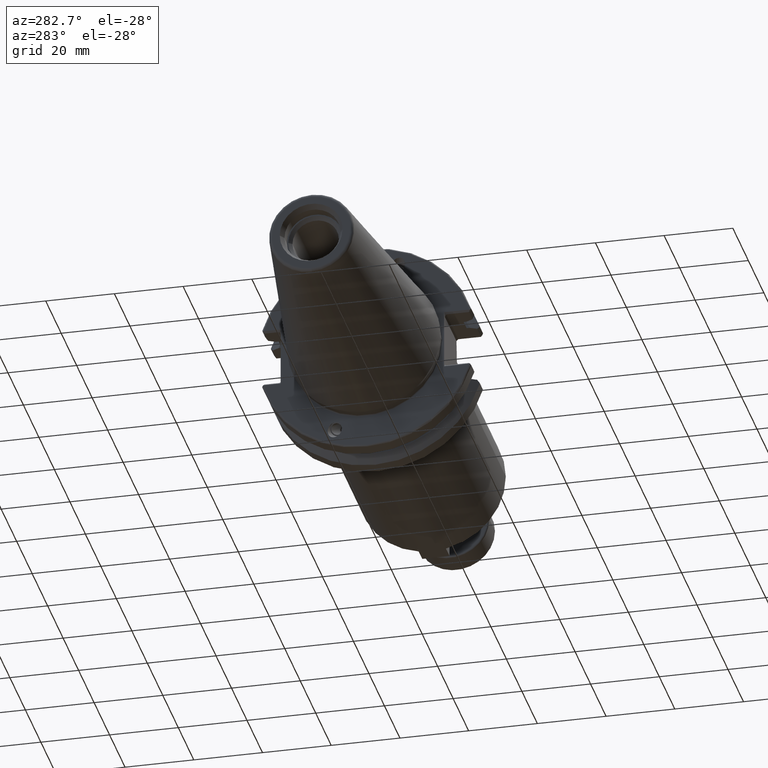
[diagram: clean part render]
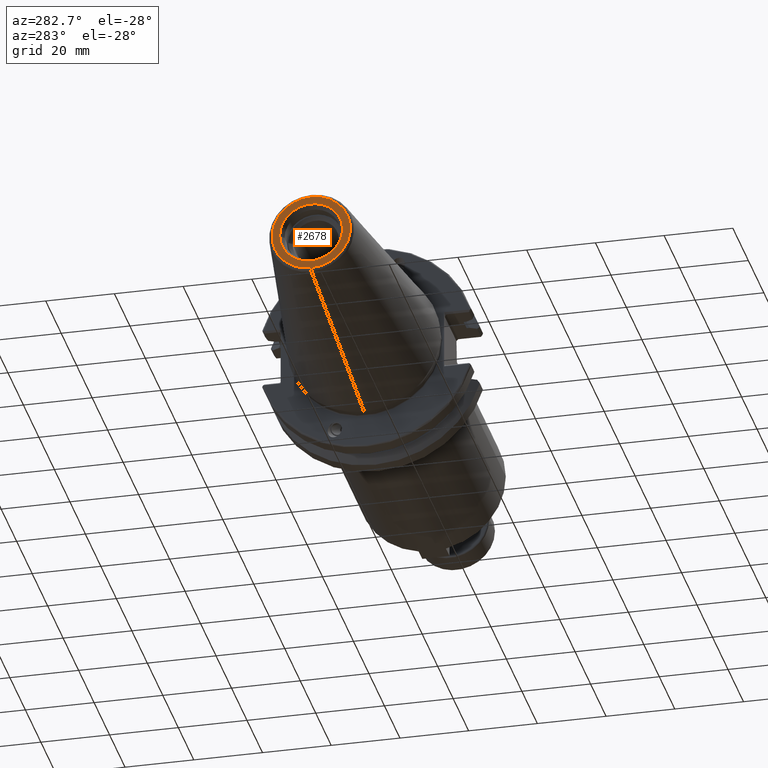
[diagram: same view with one face highlighted and labeled with its STEP entity id]
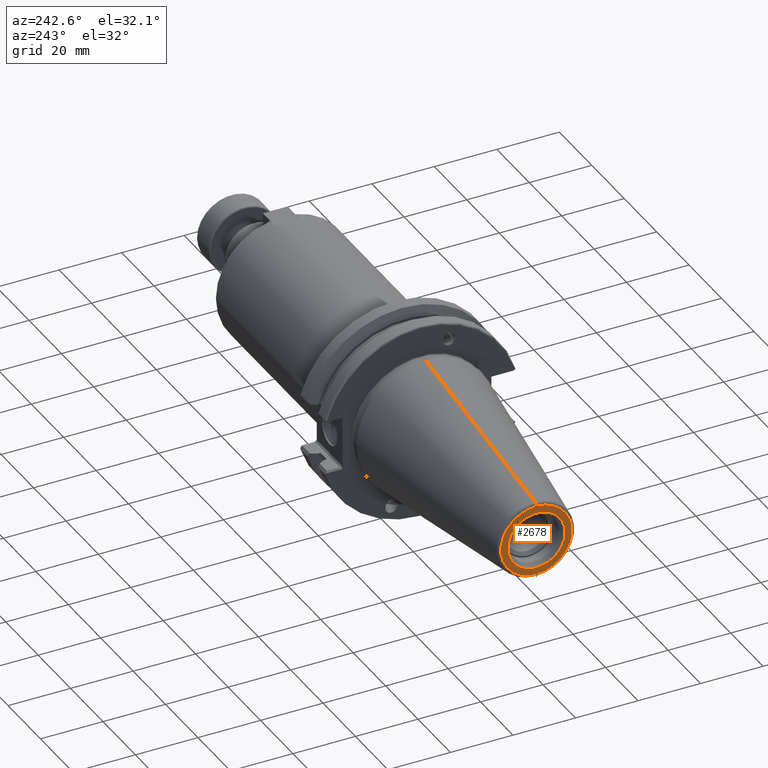
[diagram: same view with one face highlighted and labeled with its STEP entity id]
A machine part, auxiliary view. The second image highlights one B-rep face of the part: STEP entity #2678.
A second angle (auxiliary view) of the same face is appended — the face is thin or edge-on in the first view.
In plain terms, the highlighted planar face has unit normal (1, 0, 0).
Its self-contained STEP definition (entity closure, byte-faithful):
#22=CARTESIAN_POINT('',(-2.687007874016E0,0.E0,0.E0));
#23=DIRECTION('',(-1.E0,0.E0,0.E0));
#24=DIRECTION('',(0.E0,0.E0,-1.E0));
#25=AXIS2_PLACEMENT_3D('',#22,#23,#24);
#27=CARTESIAN_POINT('',(-2.687007874016E0,0.E0,0.E0));
#28=DIRECTION('',(-1.E0,0.E0,0.E0));
#29=DIRECTION('',(0.E0,0.E0,1.E0));
#30=AXIS2_PLACEMENT_3D('',#27,#28,#29);
#32=CARTESIAN_POINT('',(-2.687007874016E0,0.E0,0.E0));
#33=DIRECTION('',(1.E0,0.E0,0.E0));
#34=DIRECTION('',(0.E0,-1.E0,0.E0));
#35=AXIS2_PLACEMENT_3D('',#32,#33,#34);
#37=CARTESIAN_POINT('',(-2.687007874016E0,0.E0,0.E0));
#38=DIRECTION('',(1.E0,0.E0,0.E0));
#39=DIRECTION('',(0.E0,1.E0,0.E0));
#40=AXIS2_PLACEMENT_3D('',#37,#38,#39);
#2246=CARTESIAN_POINT('',(-2.687007874016E0,0.E0,-4.490996283778E-1));
#2247=CARTESIAN_POINT('',(-2.687007874016E0,0.E0,4.490996283778E-1));
#2248=VERTEX_POINT('',#2246);
#2249=VERTEX_POINT('',#2247);
#2294=CARTESIAN_POINT('',(-2.687007874016E0,-3.602362204725E-1,0.E0));
#2295=CARTESIAN_POINT('',(-2.687007874016E0,3.602362204725E-1,0.E0));
#2296=VERTEX_POINT('',#2294);
#2297=VERTEX_POINT('',#2295);
#2662=CARTESIAN_POINT('',(-2.687007874016E0,0.E0,0.E0));
#2663=DIRECTION('',(1.E0,0.E0,0.E0));
#2664=DIRECTION('',(0.E0,0.E0,1.E0));
#2665=AXIS2_PLACEMENT_3D('',#2662,#2663,#2664);
#2666=PLANE('',#2665);
#2668=ORIENTED_EDGE('',*,*,#2667,.F.);
#2669=ORIENTED_EDGE('',*,*,#2652,.F.);
#2670=EDGE_LOOP('',(#2668,#2669));
#2671=FACE_OUTER_BOUND('',#2670,.F.);
#2673=ORIENTED_EDGE('',*,*,#2672,.F.);
#2675=ORIENTED_EDGE('',*,*,#2674,.F.);
#2676=EDGE_LOOP('',(#2673,#2675));
#2677=FACE_BOUND('',#2676,.F.);
#2678=ADVANCED_FACE('',(#2671,#2677),#2666,.F.);
#26=CIRCLE('',#25,4.490996283778E-1);
#31=CIRCLE('',#30,4.490996283778E-1);
#36=CIRCLE('',#35,3.602362204725E-1);
#41=CIRCLE('',#40,3.602362204725E-1);
#2652=EDGE_CURVE('',#2249,#2248,#31,.T.);
#2667=EDGE_CURVE('',#2248,#2249,#26,.T.);
#2672=EDGE_CURVE('',#2296,#2297,#36,.T.);
#2674=EDGE_CURVE('',#2297,#2296,#41,.T.);